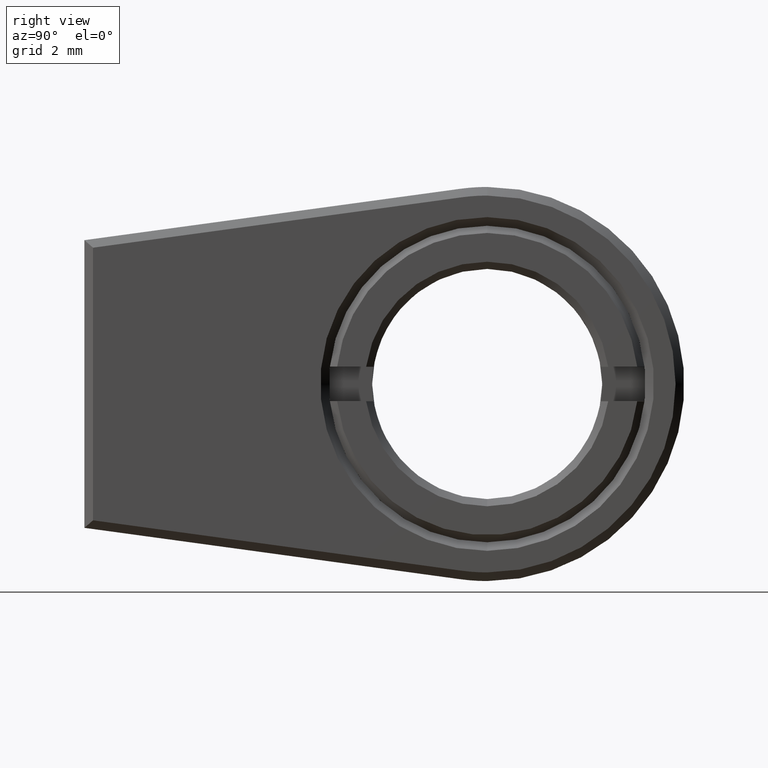
[diagram: clean part render]
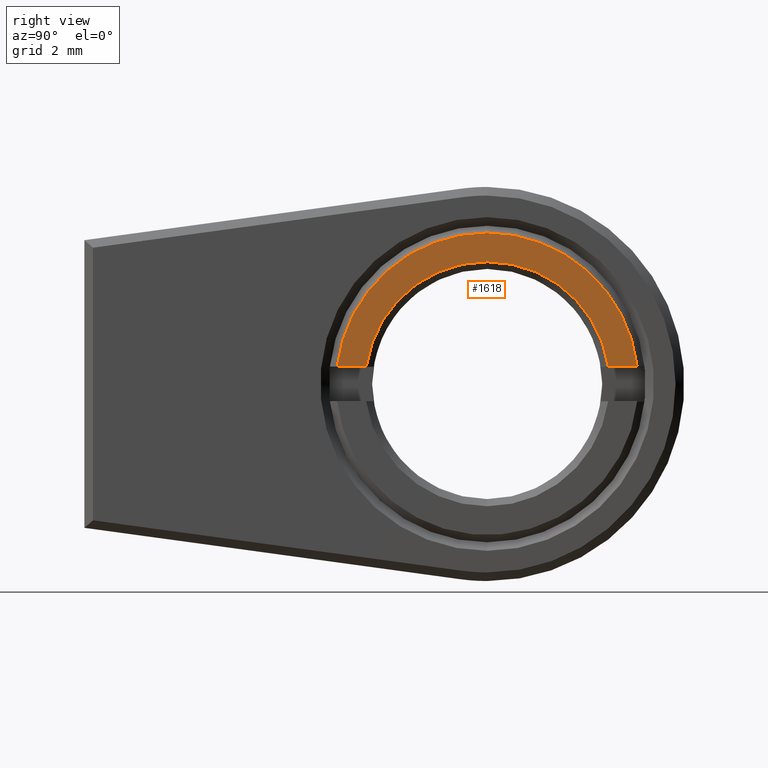
[diagram: same view with one face highlighted and labeled with its STEP entity id]
A machine part, right view. The second image highlights one B-rep face of the part: STEP entity #1618.
In plain terms, the highlighted planar face has unit normal (1, 0, 0).
Its self-contained STEP definition (entity closure, byte-faithful):
#10 = CIRCLE ( 'NONE', #376, 5.250000000000002665 ) ;
#13 = DIRECTION ( 'NONE',  ( 1.000000000000000000, 0.0000000000000000000, 0.0000000000000000000 ) ) ;
#81 = CARTESIAN_POINT ( 'NONE',  ( 2.500000000000000444, -5.215601595214115704, 0.5999999999999994227 ) ) ;
#95 = EDGE_CURVE ( 'NONE', #543, #1640, #466, .T. ) ;
#112 = DIRECTION ( 'NONE',  ( 0.0000000000000000000, 0.0000000000000000000, -1.000000000000000000 ) ) ;
#211 = FACE_OUTER_BOUND ( 'NONE', #1506, .T. ) ;
#215 = EDGE_CURVE ( 'NONE', #1753, #543, #10, .T. ) ;
#223 = DIRECTION ( 'NONE',  ( 0.0000000000000000000, 0.0000000000000000000, -1.000000000000000000 ) ) ;
#333 = CARTESIAN_POINT ( 'NONE',  ( 2.500000000000000444, 105.0000000000000000, 0.6000000000000128564 ) ) ;
#351 = CARTESIAN_POINT ( 'NONE',  ( 2.500000000000000444, 0.0000000000000000000, 5.250000000000002665 ) ) ;
#373 = PLANE ( 'NONE',  #750 ) ;
#376 = AXIS2_PLACEMENT_3D ( 'NONE', #1663, #13, #1769 ) ;
#466 = CIRCLE ( 'NONE', #1355, 5.250000000000002665 ) ;
#527 = VECTOR ( 'NONE', #858, 1000.000000000000000 ) ;
#543 = VERTEX_POINT ( 'NONE', #351 ) ;
#682 = CARTESIAN_POINT ( 'NONE',  ( 2.500000000000000444, 5.215601595214115704, 0.6000000000000007550 ) ) ;
#730 = CARTESIAN_POINT ( 'NONE',  ( 2.500000000000000444, -4.207433897282289337, 0.5999999999999995337 ) ) ;
#750 = AXIS2_PLACEMENT_3D ( 'NONE', #1059, #1189, #1735 ) ;
#761 = ORIENTED_EDGE ( 'NONE', *, *, #215, .T. ) ;
#832 = ORIENTED_EDGE ( 'NONE', *, *, #1576, .T. ) ;
#839 = LINE ( 'NONE', #1533, #527 ) ;
#858 = DIRECTION ( 'NONE',  ( 0.0000000000000000000, -1.000000000000000000, -1.223599594662212253E-16 ) ) ;
#900 = VECTOR ( 'NONE', #1684, 1000.000000000000000 ) ;
#928 = CARTESIAN_POINT ( 'NONE',  ( 2.500000000000000444, 4.207433897282289337, 0.6000000000000006439 ) ) ;
#1008 = ORIENTED_EDGE ( 'NONE', *, *, #1253, .F. ) ;
#1028 = CARTESIAN_POINT ( 'NONE',  ( 2.500000000000000444, 0.0000000000000000000, 0.0000000000000000000 ) ) ;
#1059 = CARTESIAN_POINT ( 'NONE',  ( 2.500000000000000444, 0.0000000000000000000, 0.0000000000000000000 ) ) ;
#1105 = VERTEX_POINT ( 'NONE', #928 ) ;
#1138 = LINE ( 'NONE', #333, #900 ) ;
#1189 = DIRECTION ( 'NONE',  ( 1.000000000000000000, 0.0000000000000000000, 0.0000000000000000000 ) ) ;
#1247 = CIRCLE ( 'NONE', #1473, 4.250000000000003553 ) ;
#1253 = EDGE_CURVE ( 'NONE', #1288, #1640, #839, .T. ) ;
#1277 = EDGE_CURVE ( 'NONE', #1753, #1105, #1138, .T. ) ;
#1288 = VERTEX_POINT ( 'NONE', #730 ) ;
#1355 = AXIS2_PLACEMENT_3D ( 'NONE', #1028, #1421, #112 ) ;
#1421 = DIRECTION ( 'NONE',  ( 1.000000000000000000, 0.0000000000000000000, 0.0000000000000000000 ) ) ;
#1431 = ORIENTED_EDGE ( 'NONE', *, *, #95, .T. ) ;
#1445 = CARTESIAN_POINT ( 'NONE',  ( 2.500000000000000444, 0.0000000000000000000, 0.0000000000000000000 ) ) ;
#1473 = AXIS2_PLACEMENT_3D ( 'NONE', #1445, #1742, #223 ) ;
#1506 = EDGE_LOOP ( 'NONE', ( #1664, #761, #1431, #1008, #832 ) ) ;
#1533 = CARTESIAN_POINT ( 'NONE',  ( 2.500000000000000444, 105.0000000000000000, 0.6000000000000128564 ) ) ;
#1576 = EDGE_CURVE ( 'NONE', #1288, #1105, #1247, .T. ) ;
#1618 = ADVANCED_FACE ( 'NONE', ( #211 ), #373, .T. ) ;
#1640 = VERTEX_POINT ( 'NONE', #81 ) ;
#1663 = CARTESIAN_POINT ( 'NONE',  ( 2.500000000000000444, 0.0000000000000000000, 0.0000000000000000000 ) ) ;
#1664 = ORIENTED_EDGE ( 'NONE', *, *, #1277, .F. ) ;
#1684 = DIRECTION ( 'NONE',  ( 0.0000000000000000000, -1.000000000000000000, -1.223599594662212253E-16 ) ) ;
#1735 = DIRECTION ( 'NONE',  ( 0.0000000000000000000, 0.0000000000000000000, -1.000000000000000000 ) ) ;
#1742 = DIRECTION ( 'NONE',  ( -1.000000000000000000, -0.0000000000000000000, -0.0000000000000000000 ) ) ;
#1753 = VERTEX_POINT ( 'NONE', #682 ) ;
#1769 = DIRECTION ( 'NONE',  ( 0.0000000000000000000, 0.0000000000000000000, -1.000000000000000000 ) ) ;